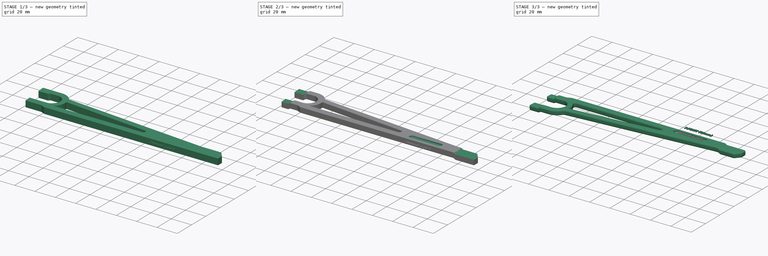
[diagram: build sequence overview — one tinted view per stage of 3, left to right]
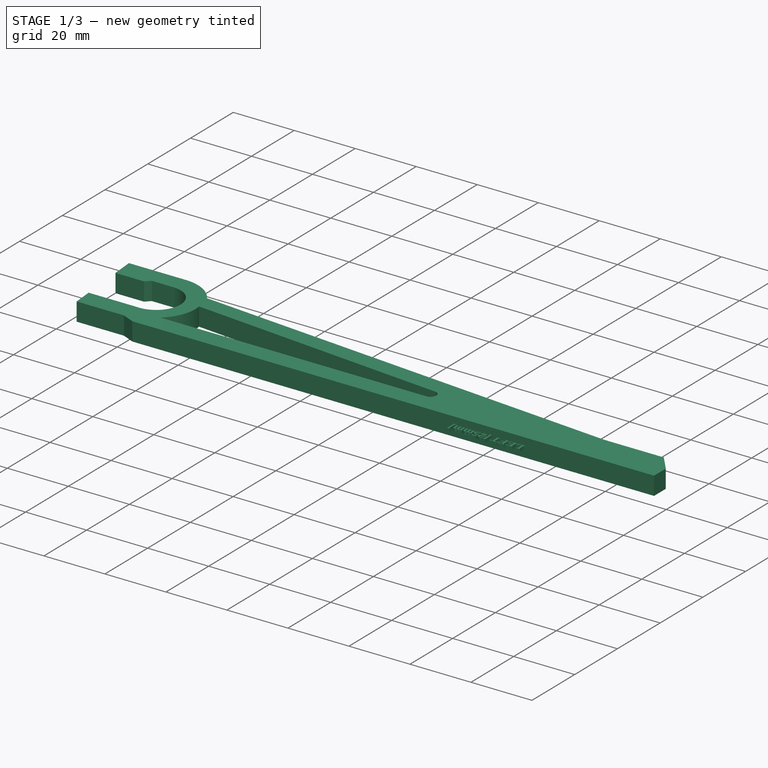
[diagram: stage 1 of 3 — iso view after this stage's code; geometry added in this stage tinted green]
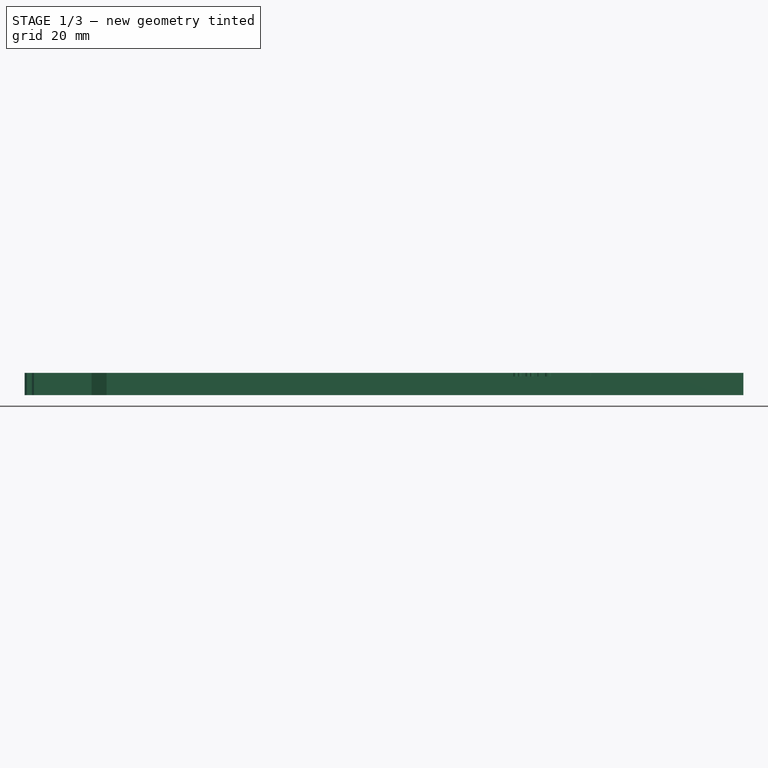
[diagram: stage 1 of 3 — front view after this stage's code; geometry added in this stage tinted green]
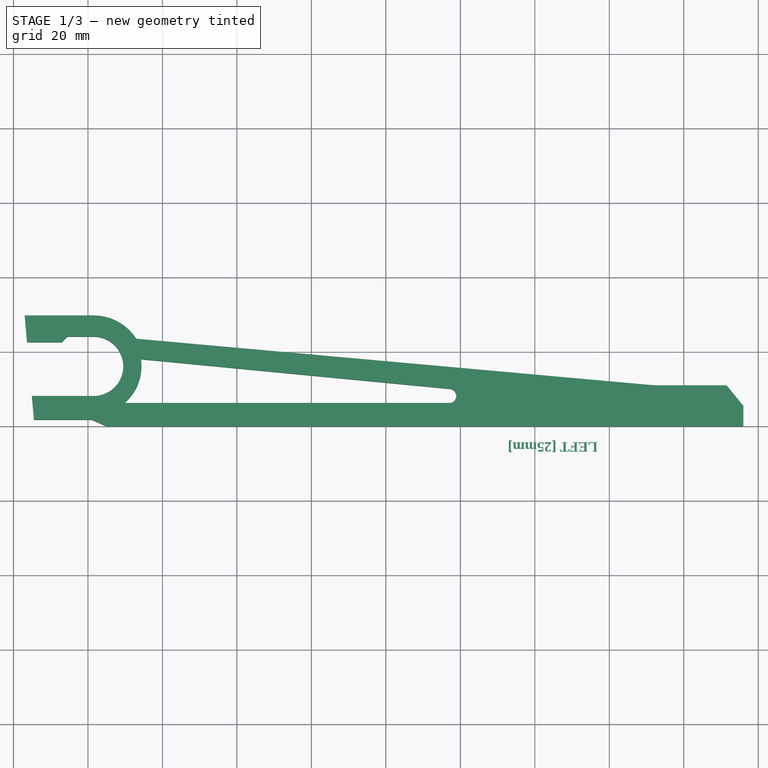
[diagram: stage 1 of 3 — top view after this stage's code; geometry added in this stage tinted green]
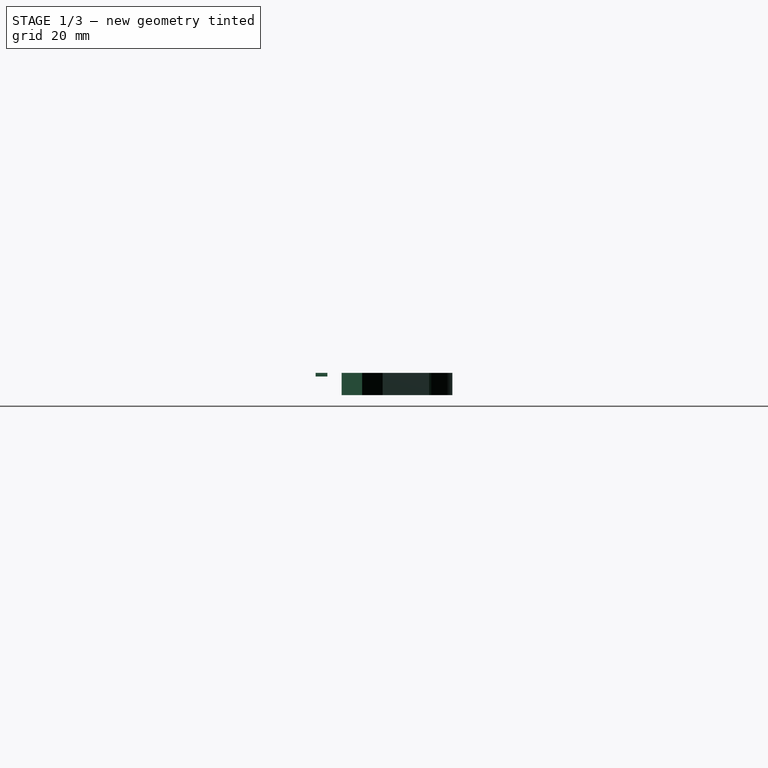
[diagram: stage 1 of 3 — right view after this stage's code; geometry added in this stage tinted green]
FCSTD DOCUMENT  (FreeCAD 0.20R29410 (Git))
Label: emaxx-battery-holddown
License: All rights reserved
LicenseURL: http://en.wikipedia.org/wiki/All_rights_reserved
objects: Sketcher::SketchObject×4, PartDesign::Pocket×3, Part::Part2DObjectPython×2, Part::Extrusion×2, PartDesign::Pad×1, Spreadsheet::Sheet×1, PartDesign::Fillet×1, PartDesign::Body×1, App::Part×1, Part::Mirroring×1
note: 20 computed .brp shape members not serialized (recipe doc carries the construction recipe); baked Part::Feature solids carry a one-line shape summary decoded from their .brp

FEATURE [Sketcher::SketchObject] Sketch
  FullyConstrained = true
  MapMode = 5
  Support = -> [XY_Plane001]
  expr: Constraints[13] = <<parameters>>.offset_from_center
  expr: Constraints[14] = <<parameters>>.overall_length - 19.5
  sketch-geometry (22):
    g0: LineSegment StartX=96 StartY=0 StartZ=0 EndX=96 EndY=5.5 EndZ=0
    g1: LineSegment StartX=96 StartY=5.5 StartZ=0 EndX=91.5 EndY=11 EndZ=0
    g2: LineSegment StartX=91.5 StartY=11 StartZ=0 EndX=72 EndY=11 EndZ=0
    g3: LineSegment StartX=72 StartY=11 StartZ=0 EndX=-67 EndY=23.5 EndZ=0
    g4: LineSegment StartX=-75 StartY=0 StartZ=0 EndX=-79 EndY=1.75 EndZ=0
    g5: LineSegment StartX=-79 StartY=1.75 StartZ=0 EndX=-94.5 EndY=1.75 EndZ=0
    g6: LineSegment StartX=-75 StartY=0 StartZ=0 EndX=96 EndY=0 EndZ=0
    g7: GeomPoint X=-97 Y=29.75 Z=0
    g8: LineSegment StartX=-94.5 StartY=1.75 StartZ=0 EndX=-97 EndY=8.15 EndZ=0
    g9: LineSegment StartX=-97 StartY=29.75 StartZ=0 EndX=-97 EndY=22.55 EndZ=0
    g10: LineSegment StartX=-97 StartY=29.75 StartZ=0 EndX=-87 EndY=29.75 EndZ=0
    g11: LineSegment StartX=-97 StartY=22.55 StartZ=0 EndX=-87 EndY=22.55 EndZ=0
    g12: LineSegment StartX=-87 StartY=22.55 StartZ=0 EndX=-85.5 EndY=24.05 EndZ=0
    g13: LineSegment StartX=-97 StartY=8.15 StartZ=0 EndX=-79 EndY=8.15 EndZ=0
    g14: LineSegment StartX=-85.5 StartY=24.05 StartZ=0 EndX=-79 EndY=24.05 EndZ=0
    g15: ArcOfCircle CenterX=-78.4818 CenterY=16.1 CenterZ=0 NormalX=0 NormalY=0 NormalZ=1 AngleXU=0 Radius=7.96687 StartAngle=4.6473 EndAngle=7.91908
    g16: LineSegment StartX=-87 StartY=29.75 StartZ=0 EndX=-79 EndY=29.75 EndZ=0
    g17: ArcOfCircle CenterX=-78.4818 CenterY=16.1 CenterZ=0 NormalX=0 NormalY=0 NormalZ=1 AngleXU=0 Radius=13.6598 StartAngle=0.572499 EndAngle=1.60874
    g18: ArcOfCircle CenterX=17 CenterY=8.15 CenterZ=0 NormalX=0 NormalY=0 NormalZ=1 AngleXU=0 Radius=1.9 StartAngle=4.71239 EndAngle=7.85398
    g19: ArcOfCircle CenterX=-78.4818 CenterY=16.1 CenterZ=0 NormalX=0 NormalY=0 NormalZ=1 AngleXU=0 Radius=12.8619 StartAngle=5.41086 EndAngle=6.43145
    g20: LineSegment StartX=-65.761 StartY=18 StartZ=0 EndX=17 EndY=10.05 EndZ=0
    g21: LineSegment StartX=17 StartY=6.25 StartZ=0 EndX=-70.211 EndY=6.25 EndZ=0
  constraints (66):
    c: PointOnObject(g0,g-1)
    c: Vertical(g0)
    c: DistanceY(g0,g0) = 5.5
    c: Coincident(g1,g0)
    c: DistanceX(g1,g0) = 4.5
    c: DistanceY(g0,g1) = 11
    c: Coincident(g2,g1)
    c: Horizontal(g2)
    c: DistanceX(g2,g0) = 24
    c: Coincident(g3,g2)
    c: DistanceY(g3) = 23.5
    c: Coincident(g5,g4)
    c: Horizontal(g5)
    c: DistanceX(g-1,g0) = 96
    c: DistanceX(g4,g0) = 171
    c: DistanceY(g-1,g4) = 1.75
    c: Horizontal(g4,g-1)
    c: DistanceX(g4,g4) = 4
    c: Coincident(g6,g4)
    c: Coincident(g6,g0)
    c: DistanceY(g5,g7) = 28
    c: Coincident(g8,g5)
    c: DistanceY(g5,g8) = 6.4
    c: Coincident(g9,g7)
    c: Vertical(g9)
    c: DistanceY(g9,g9) = 7.2
    c: Coincident(g10,g9)
    c: Horizontal(g10)
    c: DistanceX(g9,g10) = 10
    c: Coincident(g11,g9)
    c: Horizontal(g11)
    c: Vertical(g11,g10)
    c: Coincident(g12,g11)
    c: DistanceX(g11,g12) = 1.5
    c: DistanceY(g11,g12) = 1.5
    c: Coincident(g13,g8)
    c: Horizontal(g13)
    c: Vertical(g13,g4)
    c: Coincident(g14,g12)
    c: Horizontal(g14)
    c: Vertical(g13,g14)
    c: Coincident(g15,g14)
    c: Coincident(g15,g13)
    c: Coincident(g16,g10)
    c: Horizontal(g16)
    c: Vertical(g16,g14)
    c: Coincident(g17,g15)
    c: Coincident(g17,g16)
    c: Coincident(g17,g3)
    c: Radius(g18) = 1.9
    c: Vertical(g18,g18)
    c: Vertical(g18,g18)
    c: DistanceX(g18,g0) = 79
    c: DistanceY(g-1,g18) = 8.15
    c: Coincident(g19,g15)
    c: Coincident(g20,g19)
    c: Coincident(g20,g18)
    c: Coincident(g21,g18)
    c: Coincident(g21,g19)
    c: Horizontal(g21)
    c: DistanceY(g15,g19) = 1.9
    c: DistanceX(g19,g19) = 4.45
    c: DistanceX(g8,g5) = 2.5
    c: Vertical(g9,g8)
    c: DistanceX(g4,g3) = 8
    c: DistanceX(g5,g4) = 19.5
FEATURE [PartDesign::Pad] Pad  label="Frame"
  Direction = (0,0,1)
  Length = 6
  Length2 = 10
  Profile = -> Sketch
  ReferenceAxis = -> Sketch [N_Axis]
  Type = 0
  expr: Length = <<parameters>>.thickness
FEATURE [Spreadsheet::Sheet] Spreadsheet  label="parameters"
  cells = A1=offset_from_center; B1(offset_from_center)=96; A2=thickness; B2(thickness)=6; C2=6; D2=17; A3=part_thickness; B3(part_thickness)=4.9; A4=curve_width; B4(curve_width)=3; C4=3; D4=15; A5=overall_length; B5(overall_length)=190.5
FEATURE [Sketcher::SketchObject] Sketch001
  FullyConstrained = true
  MapMode = 5
  Placement = pos=(0,0,6) rot=(0,0,1;0rad)
  Support = -> [Pad]
  expr: Constraints[1] = <<parameters>>.offset_from_center
  expr: Constraints[2] = <<parameters>>.overall_length
  sketch-geometry (5):
    g0: GeomPoint X=96 Y=0 Z=0
    g1: GeomPoint X=-94.5 Y=1.75 Z=0
    g2: LineSegment StartX=-97 StartY=29.75 StartZ=0 EndX=-97 EndY=1.75 EndZ=0
    g3: LineSegment StartX=-97 StartY=1.75 StartZ=0 EndX=-94.5 EndY=1.75 EndZ=0
    g4: LineSegment StartX=-97 StartY=29.75 StartZ=0 EndX=-94.5 EndY=1.75 EndZ=0
  constraints (12):
    c: PointOnObject(g0,g-1)
    c: DistanceX(g-1,g0) = 96
    c: DistanceX(g1,g0) = 190.5
    c: Vertical(g2)
    c: DistanceX(g2,g1) = 2.5
    c: Coincident(g3,g2)
    c: Coincident(g3,g1)
    c: Coincident(g4,g2)
    c: Coincident(g4,g3)
    c: DistanceY(g-1,g3) = 1.75
    c: Horizontal(g2,g3)
    c: DistanceY(g2,g2) = 28
FEATURE [PartDesign::Pocket] Pocket  label="BackSlant"
  BaseFeature = -> Pad
  Direction = (0,0,-1)
  Length = 6
  Length2 = 5
  Profile = -> Sketch001
  ReferenceAxis = -> Sketch001 [N_Axis]
  Type = 0
  expr: Length = <<parameters>>.thickness
FEATURE [Part::Part2DObjectPython] ShapeString001  label="HolddownLString"  # Draft 2D object (typed FeaturePython)
  FontFile = <path>
  MakeFace = true
  Placement = pos=(56.89,-4.3,5) rot=(0,0,1;3.14159rad)
  Size = 3
  String = LEFT [25mm]
  Tracking = 0
  expr: .Placement.Base.z = <<parameters>>.thickness - 1
FEATURE [Part::Extrusion] Extrude001  label="HolddownLLabel"
  Base = -> ShapeString001
  Dir = (0,0,1)
  DirMode = 2
  FaceMakerClass = Part::FaceMakerBullseye
  LengthFwd = 1
  LengthRev = 0
  Solid = false
  Symmetric = false
note: 2 file-system paths scrubbed to <path> (originals preserved in the JSON sidecar)
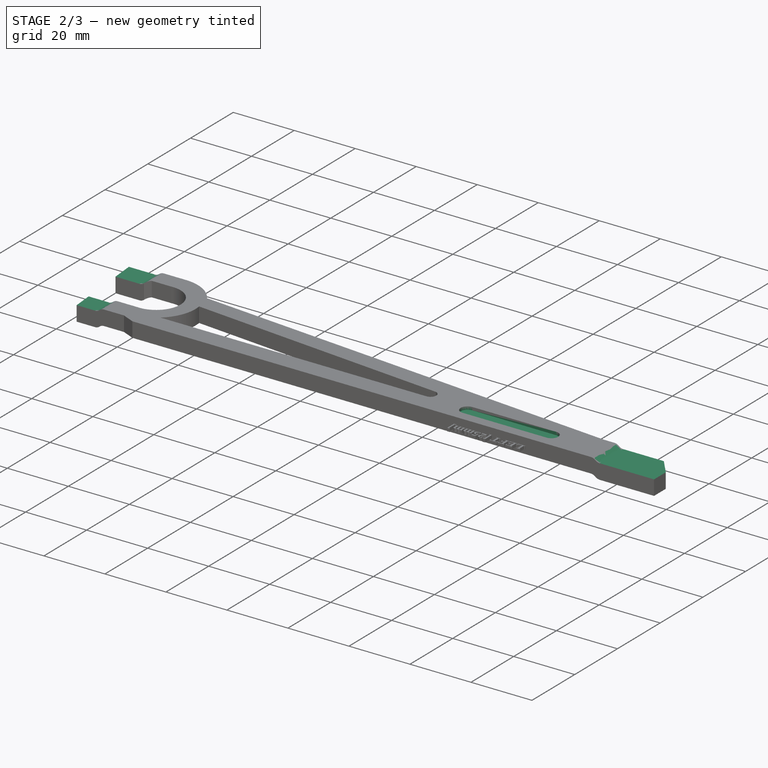
[diagram: stage 2 of 3 — iso view after this stage's code; geometry added in this stage tinted green]
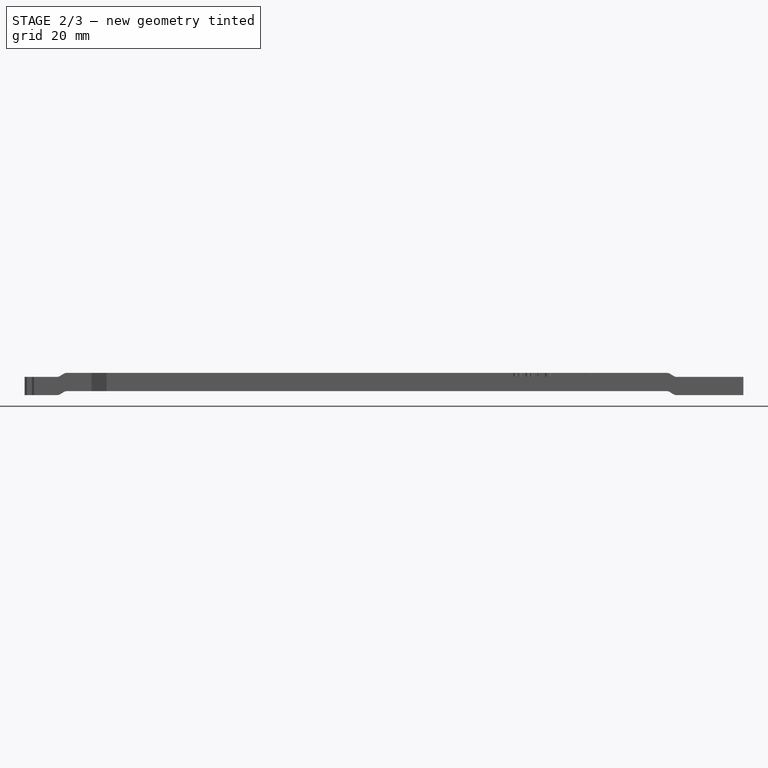
[diagram: stage 2 of 3 — front view after this stage's code; geometry added in this stage tinted green]
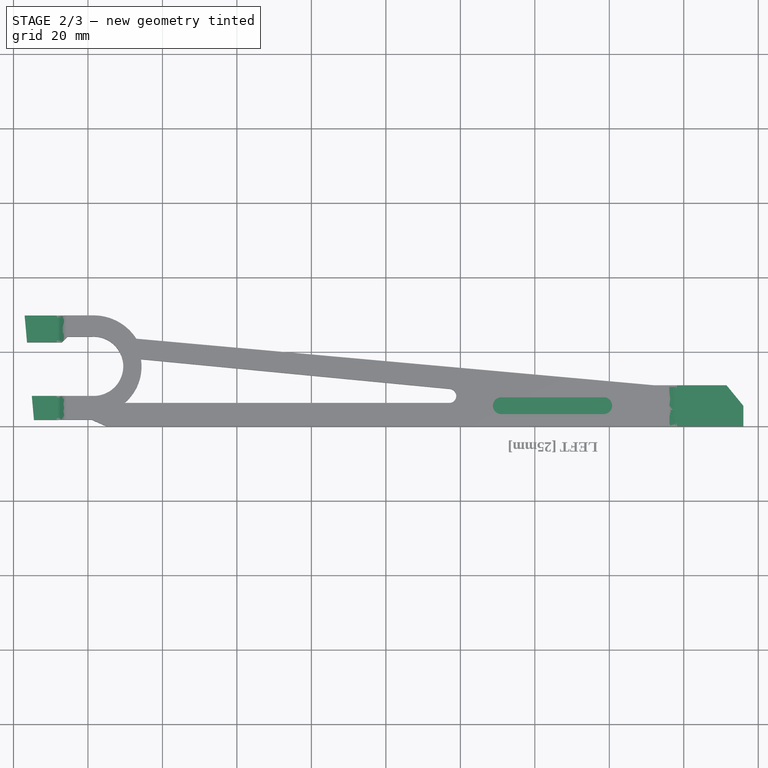
[diagram: stage 2 of 3 — top view after this stage's code; geometry added in this stage tinted green]
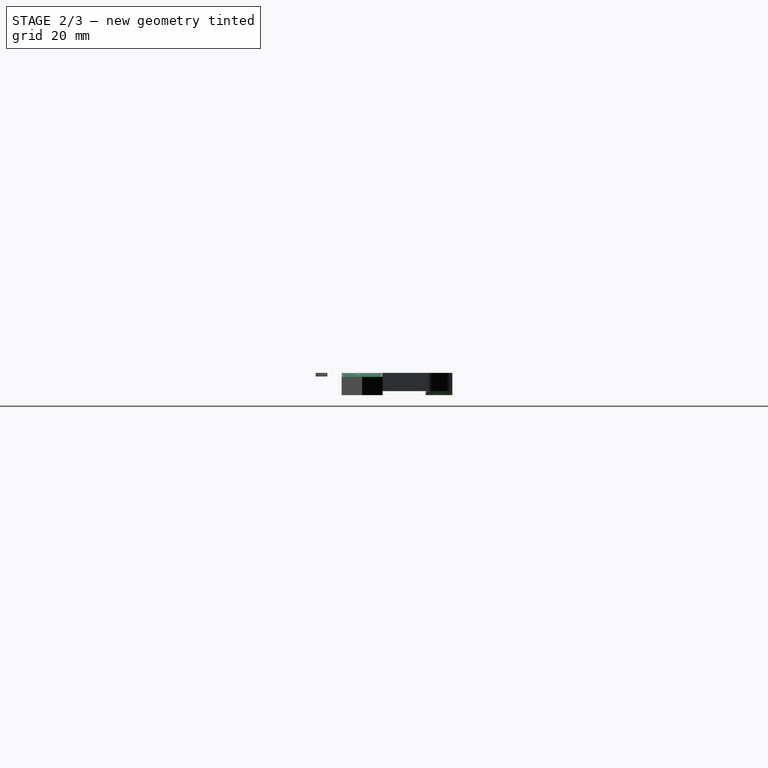
[diagram: stage 2 of 3 — right view after this stage's code; geometry added in this stage tinted green]
FEATURE [Sketcher::SketchObject] Sketch002
  FullyConstrained = true
  MapMode = 5
  Placement = pos=(0,0,6) rot=(0,0,1;0rad)
  Support = -> [Pocket]
  expr: Constraints[1] = <<parameters>>.offset_from_center
  sketch-geometry (5):
    g0: ArcOfCircle CenterX=31 CenterY=5.5 CenterZ=0 NormalX=0 NormalY=0 NormalZ=1 AngleXU=0 Radius=2.25 StartAngle=1.5708 EndAngle=4.71239
    g1: GeomPoint X=96 Y=0 Z=0
    g2: LineSegment StartX=31 StartY=7.75 StartZ=0 EndX=58.5 EndY=7.75 EndZ=0
    g3: LineSegment StartX=31 StartY=3.25 StartZ=0 EndX=58.5 EndY=3.25 EndZ=0
    g4: ArcOfCircle CenterX=58.5 CenterY=5.5 CenterZ=0 NormalX=0 NormalY=0 NormalZ=1 AngleXU=0 Radius=2.25 StartAngle=4.71239 EndAngle=7.85398
  constraints (16):
    c: PointOnObject(g1,g-1)
    c: DistanceX(g-1,g1) = 96
    c: Radius(g0) = 2.25
    c: Vertical(g0,g0)
    c: Vertical(g0,g0)
    c: Coincident(g2,g0)
    c: Horizontal(g2)
    c: Coincident(g3,g0)
    c: Horizontal(g3)
    c: DistanceX(g0,g2) = 27.5
    c: Vertical(g3,g2)
    c: Coincident(g4,g2)
    c: Coincident(g4,g3)
    c: Vertical(g3,g4)
    c: DistanceX(g4,g1) = 37.5
    c: DistanceY(g1,g4) = 5.5
FEATURE [PartDesign::Pocket] Pocket001  label="TextPocket"
  BaseFeature = -> Pocket
  Direction = (0,0,-1)
  Length = 1
  Length2 = 5
  Profile = -> Sketch002
  ReferenceAxis = -> Sketch002 [N_Axis]
  Type = 0
FEATURE [Sketcher::SketchObject] Sketch003
  FullyConstrained = true
  MapMode = 5
  Placement = pos=(0,0,0) rot=(1,0,0;1.5708rad)
  Support = -> [Pocket001]
  expr: Constraints[10] = <<parameters>>.thickness
  expr: Constraints[1] = <<parameters>>.offset_from_center
  expr: Constraints[24] = <<parameters>>.part_thickness
  expr: Constraints[25] = <<parameters>>.thickness
  expr: Constraints[27] = <<parameters>>.curve_width
  expr: Constraints[39] = <<parameters>>.curve_width
  expr: Constraints[46] = <<parameters>>.curve_width / 2
  expr: Constraints[60] = <<parameters>>.curve_width
  expr: Constraints[61] = <<parameters>>.curve_width / 2
  expr: Constraints[63] = <<parameters>>.thickness - <<parameters>>.part_thickness
  expr: Constraints[76] = <<parameters>>.curve_width
  expr: Constraints[81] = <<parameters>>.curve_width / 2
  expr: Constraints[95] = <<parameters>>.curve_width / 2
  expr: Constraints[9] = <<parameters>>.part_thickness
  sketch-geometry (40):
    g0: GeomPoint X=96 Y=0 Z=0
    g1: GeomPoint X=-96 Y=0 Z=0
    g2: GeomPoint X=-98.5 Y=0 Z=0
    g3: GeomPoint X=-88.5 Y=0 Z=0
    g4: LineSegment StartX=-98.5 StartY=6 StartZ=0 EndX=-98.5 EndY=4.9 EndZ=0
    g5: LineSegment StartX=-98.5 StartY=4.9 StartZ=0 EndX=-88.5 EndY=4.9 EndZ=0
    g6: LineSegment StartX=-98.5 StartY=6 StartZ=0 EndX=-85.5 EndY=6 EndZ=0
    g7: LineSegment StartX=78.25 StartY=0 StartZ=0 EndX=-88.5 EndY=0 EndZ=0
    g8: LineSegment StartX=96 StartY=6 StartZ=0 EndX=96 EndY=4.9 EndZ=0
    g9: LineSegment StartX=96 StartY=4.9 StartZ=0 EndX=78.25 EndY=4.9 EndZ=0
    g10-g13: Circle x4 (B-spline internal-alignment scaffolding for g14; pole/knot coordinates omitted)
    g14: BSplineCurve PolesCount=4 KnotsCount=2 Degree=3 IsPeriodic=0
    g15: GeomPoint X=78.25 Y=4.9 Z=0
    g16: GeomPoint X=75.25 Y=6 Z=0
    g17: LineSegment StartX=75.25 StartY=6 StartZ=0 EndX=96 EndY=6 EndZ=0
    g18-g21: Circle x4 (B-spline internal-alignment scaffolding for g22; pole/knot coordinates omitted)
    g22: BSplineCurve PolesCount=4 KnotsCount=2 Degree=3 IsPeriodic=0
    g23: GeomPoint X=78.25 Y=0 Z=0
    g24: GeomPoint X=75.25 Y=1.1 Z=0
    g25-g28: Circle x4 (B-spline internal-alignment scaffolding for g29; pole/knot coordinates omitted)
    g29: BSplineCurve PolesCount=4 KnotsCount=2 Degree=3 IsPeriodic=0
    g30: GeomPoint X=-88.5 Y=0 Z=0
    g31: GeomPoint X=-85.5 Y=1.1 Z=0
    g32: LineSegment StartX=-85.5 StartY=1.1 StartZ=0 EndX=75.25 EndY=1.1 EndZ=0
    g33-g36: Circle x4 (B-spline internal-alignment scaffolding for g37; pole/knot coordinates omitted)
    g37: BSplineCurve PolesCount=4 KnotsCount=2 Degree=3 IsPeriodic=0
    g38: GeomPoint X=-88.5 Y=4.9 Z=0
    g39: GeomPoint X=-85.5 Y=6 Z=0
  constraints (87):
    c: PointOnObject(g0,g-1)
    c: DistanceX(g-1,g0) = 96
    c: PointOnObject(g1,g-1)
    c: DistanceX(g1,g0) = 192
    c: PointOnObject(g2,g-1)
    c: DistanceX(g2,g1) = 2.5
    c: PointOnObject(g3,g-1)
    c: DistanceX(g2,g3) = 10
    c: Vertical(g4)
    c: DistanceY(g2,g4) = 4.9
    c: DistanceY(g2,g4) = 6
    c: Vertical(g4,g2)
    c: Coincident(g5,g4)
    c: Horizontal(g6)
    c: Coincident(g6,g4)
    c: Vertical(g3,g5)
    c: Horizontal(g5,g4)
    c: Horizontal(g7)
    c: DistanceX(g7,g0) = 17.75
    c: Coincident(g7,g3)
    c: Coincident(g9,g8)
    c: Horizontal(g9)
    c: Vertical(g8,g8)
    c: Vertical(g8,g0)
    c: DistanceY(g0,g8) = 4.9
    c: DistanceY(g0,g8) = 6
    c: Vertical(g7,g9)
    c: DistanceX(g5,g6) = 3
    c: Weight(g10) = 1
    c: Coincident(g14,g9)
    c: Equal(g10,g11)
    c: Equal(g10,g12)
    c: Equal(g10,g13)
    c: InternalAlignment(g10-g13 -> g14) x4
    c: InternalAlignment(g15,g14)
    c: InternalAlignment(g16,g14)
    c: DistanceX(g14,g9) = 3
    c: Horizontal(g11,g9)
    c: Horizontal(g12,g14)
    c: Vertical(g12,g11)
    c: Coincident(g17,g14)
    c: Coincident(g17,g8)
    c: Horizontal(g17)
    c: DistanceX(g14,g12) = 1.5
    c: Weight(g18) = 1
    c: Coincident(g22,g7)
    c: Equal(g18,g19)
    c: PointOnObject(g19,g7)
    c: Equal(g18,g20)
    c: Equal(g18,g21)
    c: InternalAlignment(g18-g21 -> g22) x4
    c: InternalAlignment(g23,g22)
    c: InternalAlignment(g24,g22)
    c: Vertical(g20,g19)
    c: DistanceX(g22,g7) = 3
    c: DistanceX(g22,g20) = 1.5
    c: Horizontal(g20,g22)
    c: DistanceY(g7,g22) = 1.1
    c: Weight(g25) = 1
    c: Coincident(g29,g7)
    c: Equal(g25,g26)
    c: PointOnObject(g26,g7)
    c: Equal(g25,g27)
    c: Equal(g25,g28)
    c: InternalAlignment(g25-g28 -> g29) x4
    c: InternalAlignment(g30,g29)
    c: InternalAlignment(g31,g29)
    c: DistanceX(g7,g29) = 3
    c: Coincident(g32,g29)
    c: Coincident(g32,g22)
    c: Horizontal(g32)
    c: Vertical(g27,g26)
    c: DistanceX(g7,g27) = 1.5
    c: Horizontal(g27,g29)
    c: Weight(g33) = 1
    c: Coincident(g37,g5)
    c: Equal(g33,g34)
    c: Equal(g33,g35)
    c: Equal(g33,g36)
    c: Coincident(g37,g6)
    c: InternalAlignment(g33-g36 -> g37) x4
    c: InternalAlignment(g38,g37)
    c: InternalAlignment(g39,g37)
    c: DistanceX(g5,g35) = 1.5
    c: Vertical(g35,g34)
    c: Horizontal(g34,g5)
    c: Horizontal(g35,g6)
FEATURE [PartDesign::Pocket] Pocket002  label="Curves"
  BaseFeature = -> Pocket001
  Direction = (0,1,-2e-16)
  Length = 30
  Length2 = 5
  Profile = -> Sketch003
  ReferenceAxis = -> Sketch003 [N_Axis]
  Type = 0
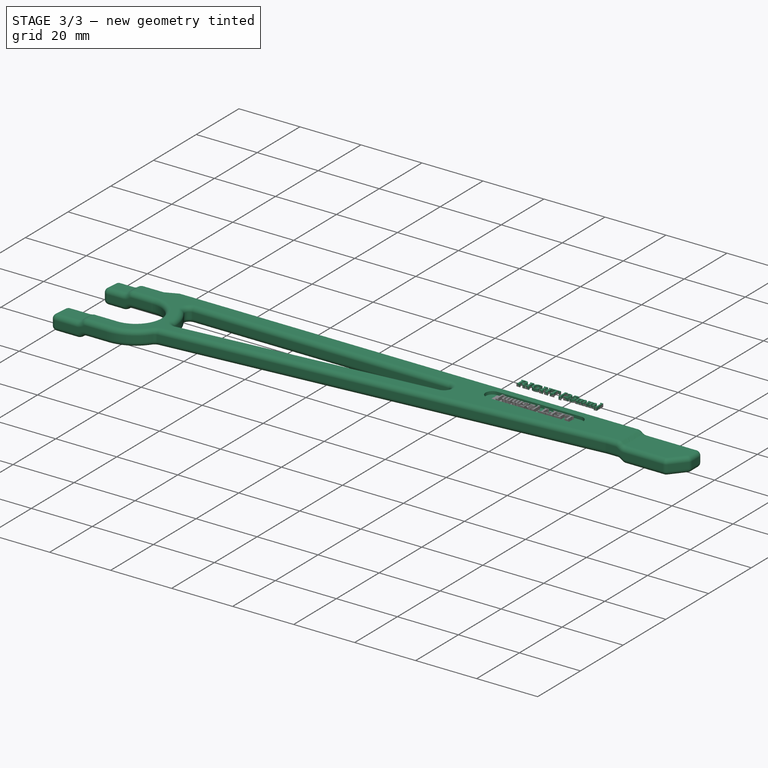
[diagram: stage 3 of 3 — iso view after this stage's code; geometry added in this stage tinted green]
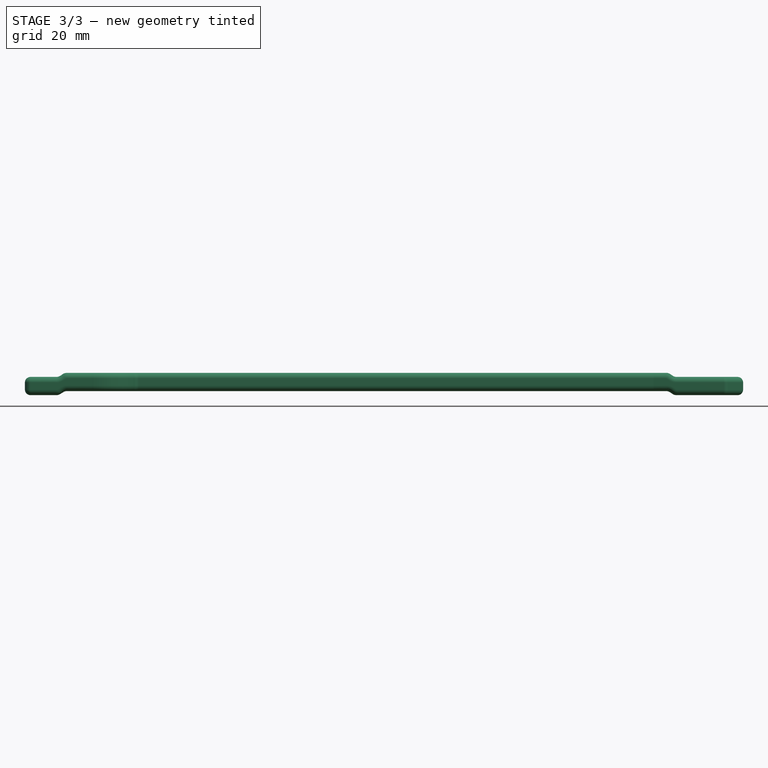
[diagram: stage 3 of 3 — front view after this stage's code; geometry added in this stage tinted green]
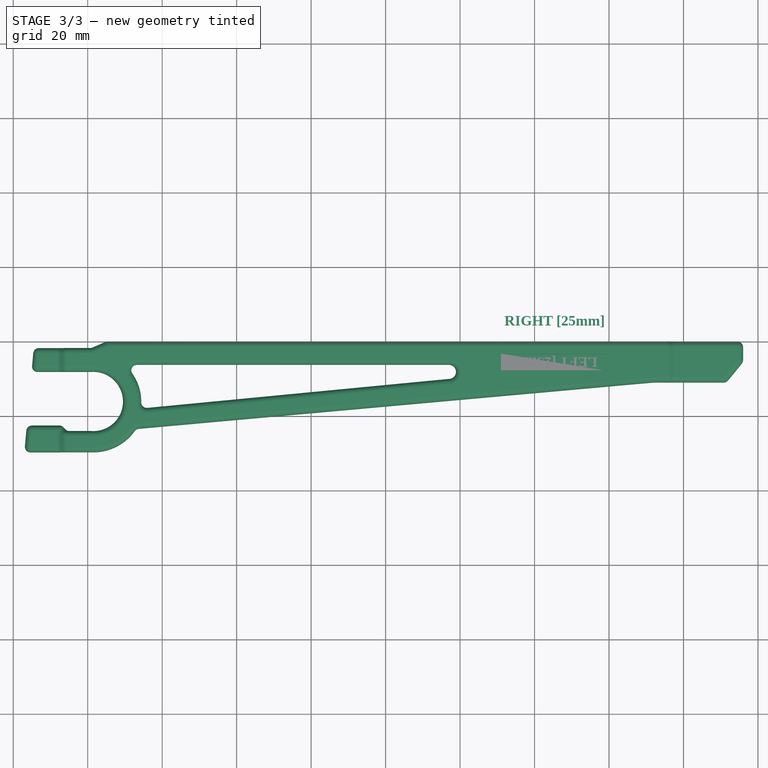
[diagram: stage 3 of 3 — top view after this stage's code; geometry added in this stage tinted green]
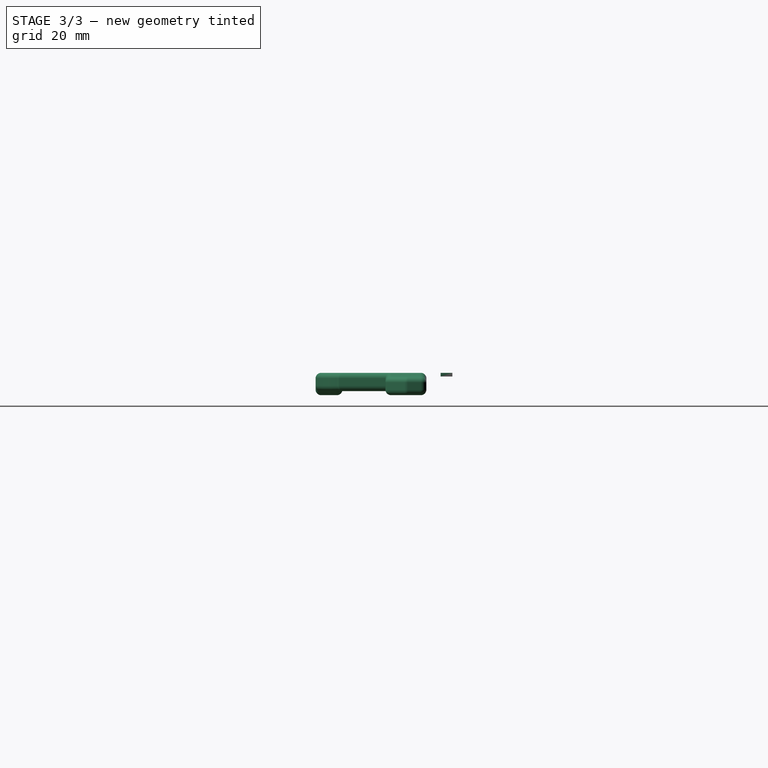
[diagram: stage 3 of 3 — right view after this stage's code; geometry added in this stage tinted green]
FEATURE [PartDesign::Fillet] Fillet
  Base = -> Pocket002 [Face5,Face24,Face11,Face12,Face1,Face23,Face20,Face22,Face21,Face13,Face14,Face34,Face40,Face18,Face17,Face32,Face35,Face16,Face36,Face10,Face9]
  BaseFeature = -> Pocket002
  Radius = 1.5
  SupportTransform = false
  UseAllEdges = false
FEATURE [PartDesign::Body] Body  label="HolddownRBody"
  Group = -> [Sketch,Pad,Sketch001,Pocket,Sketch002,Pocket001,Sketch003,Pocket002,Fillet]
  Origin = -> Origin001
  Tip = -> Fillet
FEATURE [Part::Part2DObjectPython] ShapeString  label="HolddownRString"  # Draft 2D object (typed FeaturePython)
  FontFile = <path>
  MakeFace = true
  Placement = pos=(31.89,4.3,5) rot=(0,0,1;0rad)
  Size = 3
  String = RIGHT [25mm]
  Tracking = 0
  expr: .Placement.Base.z = <<parameters>>.thickness - 1
FEATURE [Part::Extrusion] Extrude  label="HolddownRLabel"
  Base = -> ShapeString
  Dir = (0,0,1)
  DirMode = 2
  FaceMakerClass = Part::FaceMakerBullseye
  LengthFwd = 1
  LengthRev = 0
  Solid = false
  Symmetric = false
FEATURE [App::Part] Part  label="HolddownR"
  Group = -> [Body,ShapeString,Extrude]
  Origin = -> Origin
  Placement = pos=(0,5,0) rot=(0,0,1;0rad)
FEATURE [Part::Mirroring] Part__Mirroring  label="HolddownRBody (Mirror #1)"
  Base = (0,0,0)
  Normal = (0,1,0)
  Source = -> Body
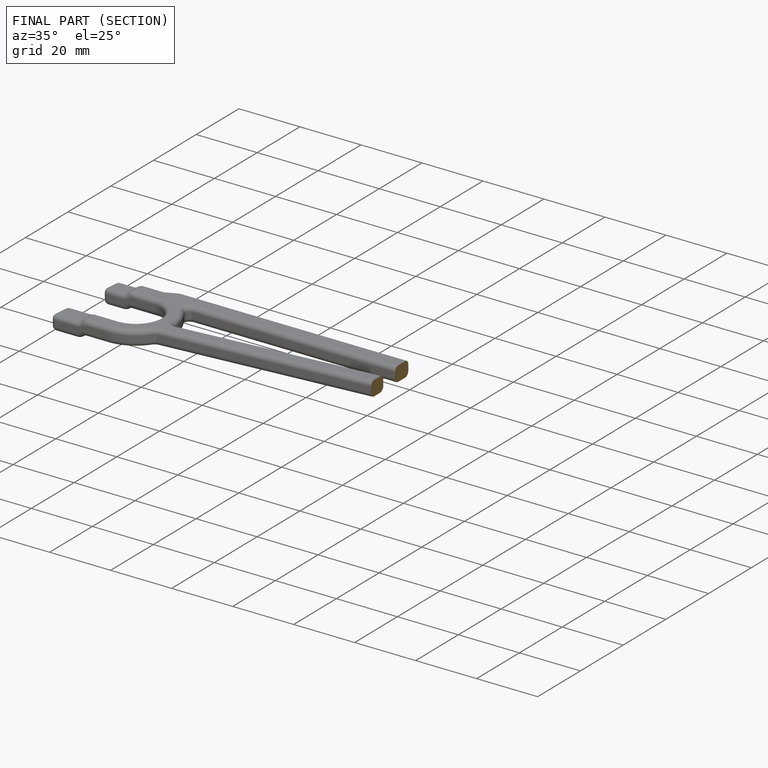
[diagram: finished part — half-section view (interior)]
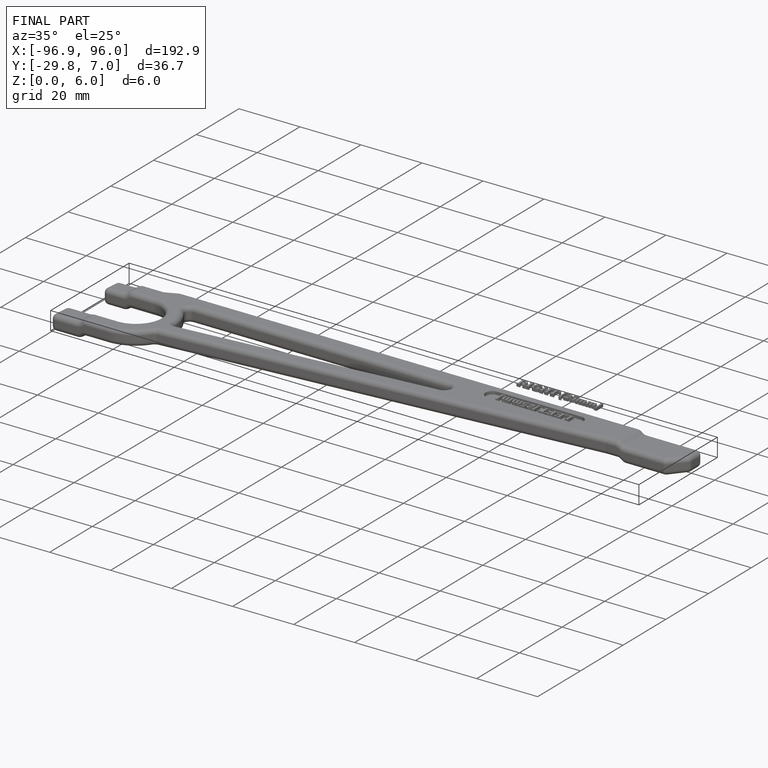
[diagram: finished part — iso view with bounding-box wireframe]
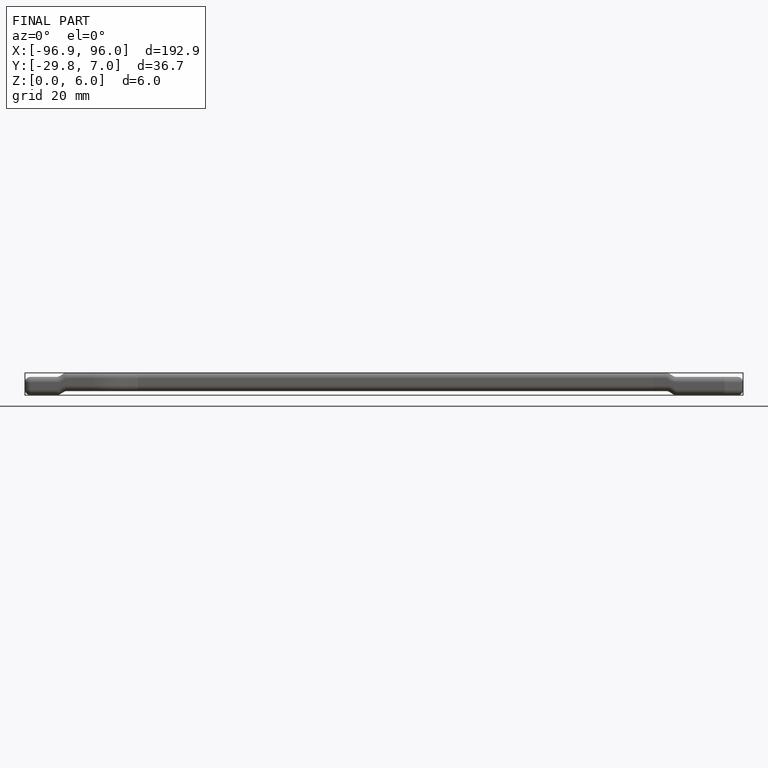
[diagram: finished part — front view with bounding-box wireframe]
